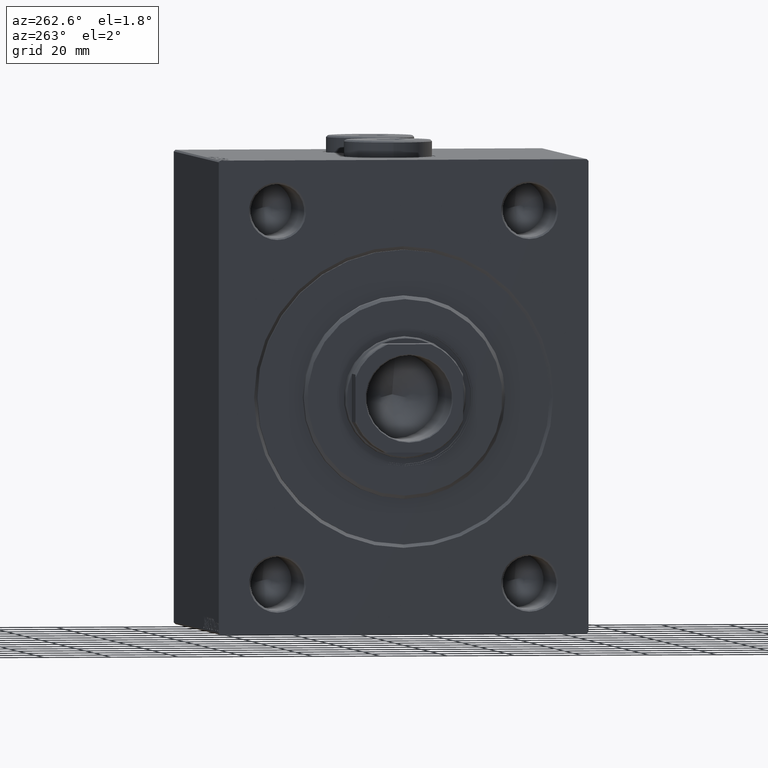
[diagram: clean part render]
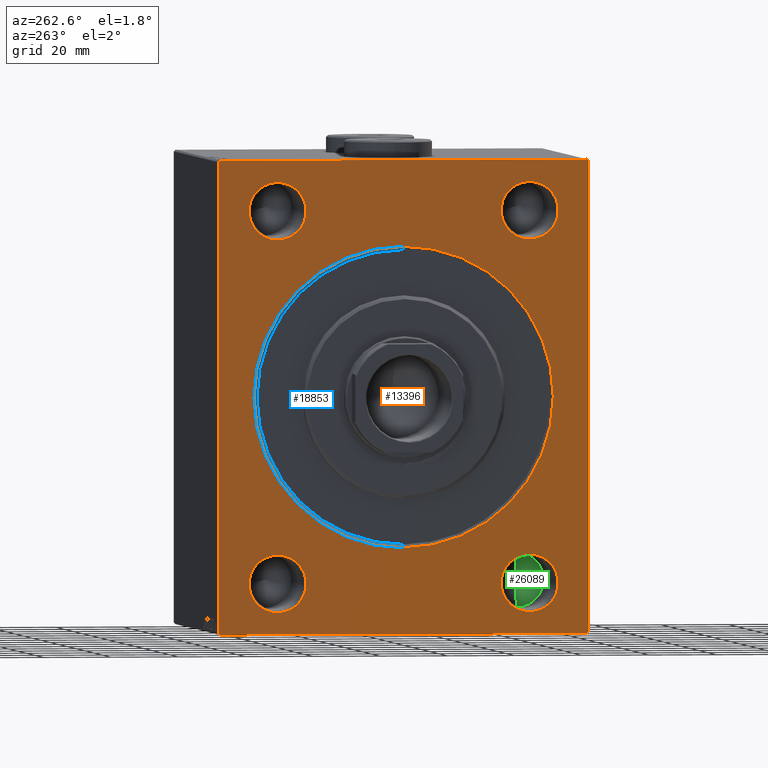
[diagram: same view with three faces highlighted in distinct colors, each labeled with its STEP entity id]
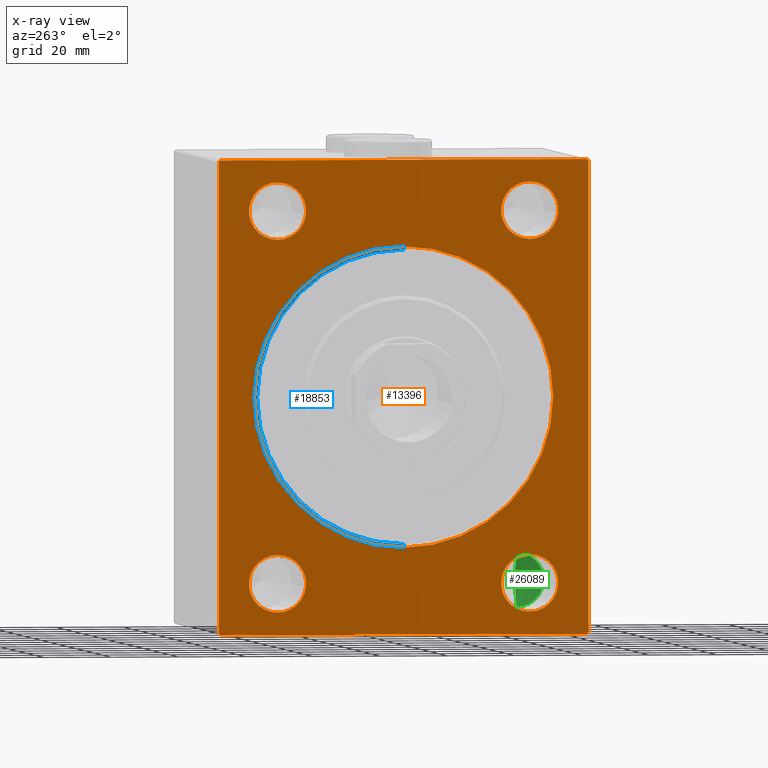
[diagram: x-ray of the same camera — body ghosted, the three highlighted faces saturated]
A machine part, auxiliary view with three faces highlighted in distinct colors.
The next image is the same camera in x-ray (body ghosted, the three faces saturated) — at least one of them is partly hidden behind the body in this view.
Their STEP definitions:

[orange] entity #13396 — the highlighted planar face has unit normal (1, 0, 0).
#227 = EDGE_CURVE ( 'NONE', #42600, #8505, #26789, .T. ) ;
#402 = VERTEX_POINT ( 'NONE', #42435 ) ;
#740 = CARTESIAN_POINT ( 'NONE',  ( 0.000000000000000000, 54.49999999999999289, 70.00000000000001421 ) ) ;
#1599 = VERTEX_POINT ( 'NONE', #23062 ) ;
#1832 = CARTESIAN_POINT ( 'NONE',  ( 0.000000000000000000, -37.49999999999999289, 63.50000000000001421 ) ) ;
#2028 = EDGE_CURVE ( 'NONE', #402, #24498, #37507, .T. ) ;
#2181 = DIRECTION ( 'NONE',  ( 1.000000000000000000, 0.000000000000000000, 0.000000000000000000 ) ) ;
#2273 = DIRECTION ( 'NONE',  ( 1.000000000000000000, 0.000000000000000000, 0.000000000000000000 ) ) ;
#2318 = ORIENTED_EDGE ( 'NONE', *, *, #18964, .T. ) ;
#2545 = AXIS2_PLACEMENT_3D ( 'NONE', #8100, #28364, #18009 ) ;
#2943 = CIRCLE ( 'NONE', #16145, 8.500000000000007105 ) ;
#4902 = CARTESIAN_POINT ( 'NONE',  ( 0.000000000000000000, 37.50000000000000000, 63.50000000000001421 ) ) ;
#4917 = EDGE_LOOP ( 'NONE', ( #36560, #19132 ) ) ;
#5129 = VERTEX_POINT ( 'NONE', #27247 ) ;
#5153 = DIRECTION ( 'NONE',  ( 1.000000000000000000, 0.000000000000000000, 0.000000000000000000 ) ) ;
#5258 = VERTEX_POINT ( 'NONE', #4902 ) ;
#5427 = AXIS2_PLACEMENT_3D ( 'NONE', #5951, #2273, #6183 ) ;
#5595 = EDGE_LOOP ( 'NONE', ( #33617, #24611, #40094, #15983, #19437, #31487, #16808, #16810 ) ) ;
#5678 = DIRECTION ( 'NONE',  ( 0.000000000000000000, 0.000000000000000000, -1.000000000000000000 ) ) ;
#5703 = EDGE_CURVE ( 'NONE', #42600, #24498, #24380, .T. ) ;
#5911 = EDGE_CURVE ( 'NONE', #24494, #42027, #31724, .T. ) ;
#5951 = CARTESIAN_POINT ( 'NONE',  ( 0.000000000000000000, -37.49999999999999289, 55.00000000000000711 ) ) ;
#5960 = VECTOR ( 'NONE', #30047, 999.9999999999998863 ) ;
#5962 = CARTESIAN_POINT ( 'NONE',  ( 0.000000000000000000, 54.99999999999999289, 70.00000000000001421 ) ) ;
#6183 = DIRECTION ( 'NONE',  ( 0.000000000000000000, 0.000000000000000000, -1.000000000000000000 ) ) ;
#6232 = EDGE_CURVE ( 'NONE', #5129, #20686, #44977, .T. ) ;
#6826 = ORIENTED_EDGE ( 'NONE', *, *, #41908, .T. ) ;
#7651 = CARTESIAN_POINT ( 'NONE',  ( 0.000000000000000000, 55.00000000000000711, -69.99999999999998579 ) ) ;
#7702 = LINE ( 'NONE', #7918, #38507 ) ;
#7814 = EDGE_LOOP ( 'NONE', ( #6826, #18977 ) ) ;
#7857 = DIRECTION ( 'NONE',  ( -0.000000000000000000, 0.7071067811865671127, -0.7071067811865279218 ) ) ;
#7918 = CARTESIAN_POINT ( 'NONE',  ( 0.000000000000000000, -55.00000000000000000, -70.00000000000000000 ) ) ;
#8069 = VECTOR ( 'NONE', #40711, 1000.000000000000000 ) ;
#8100 = CARTESIAN_POINT ( 'NONE',  ( 0.000000000000000000, 37.50000000000000000, -54.99999999999999289 ) ) ;
#8145 = FACE_BOUND ( 'NONE', #7814, .T. ) ;
#8505 = VERTEX_POINT ( 'NONE', #19377 ) ;
#8592 = ORIENTED_EDGE ( 'NONE', *, *, #27435, .T. ) ;
#8604 = PLANE ( 'NONE',  #24174 ) ;
#9107 = AXIS2_PLACEMENT_3D ( 'NONE', #34664, #13260, #41585 ) ;
#9431 = VECTOR ( 'NONE', #20008, 1000.000000000000000 ) ;
#9687 = DIRECTION ( 'NONE',  ( 1.000000000000000000, 0.000000000000000000, 0.000000000000000000 ) ) ;
#9719 = VERTEX_POINT ( 'NONE', #17062 ) ;
#10346 = CARTESIAN_POINT ( 'NONE',  ( 0.000000000000000000, 0.000000000000000000, 0.000000000000000000 ) ) ;
#11437 = EDGE_CURVE ( 'NONE', #42344, #9719, #19797, .T. ) ;
#12299 = DIRECTION ( 'NONE',  ( 0.000000000000000000, 0.000000000000000000, -1.000000000000000000 ) ) ;
#12511 = EDGE_CURVE ( 'NONE', #9719, #42344, #2943, .T. ) ;
#13211 = VECTOR ( 'NONE', #38658, 1000.000000000000000 ) ;
#13260 = DIRECTION ( 'NONE',  ( 1.000000000000000000, 0.000000000000000000, 0.000000000000000000 ) ) ;
#13396 = ADVANCED_FACE ( 'NONE', ( #33219, #39685, #40149, #8145, #36233, #22196 ), #8604, .F. ) ;
#14240 = CIRCLE ( 'NONE', #9107, 8.500000000000007105 ) ;
#14312 = AXIS2_PLACEMENT_3D ( 'NONE', #28873, #42930, #12299 ) ;
#14493 = ORIENTED_EDGE ( 'NONE', *, *, #11437, .T. ) ;
#14533 = CARTESIAN_POINT ( 'NONE',  ( 0.000000000000000000, -37.49999999999999289, -54.99999999999999289 ) ) ;
#15452 = DIRECTION ( 'NONE',  ( 1.000000000000000000, 0.000000000000000000, 0.000000000000000000 ) ) ;
#15503 = EDGE_CURVE ( 'NONE', #37531, #8505, #43321, .T. ) ;
#15983 = ORIENTED_EDGE ( 'NONE', *, *, #23582, .T. ) ;
#16145 = AXIS2_PLACEMENT_3D ( 'NONE', #14533, #15452, #43531 ) ;
#16397 = CIRCLE ( 'NONE', #2545, 8.500000000000007105 ) ;
#16808 = ORIENTED_EDGE ( 'NONE', *, *, #39352, .F. ) ;
#16810 = ORIENTED_EDGE ( 'NONE', *, *, #15503, .T. ) ;
#17062 = CARTESIAN_POINT ( 'NONE',  ( 0.000000000000000000, -37.49999999999999289, -63.50000000000000000 ) ) ;
#17077 = EDGE_LOOP ( 'NONE', ( #36264, #2318 ) ) ;
#17767 = AXIS2_PLACEMENT_3D ( 'NONE', #22961, #19506, #5678 ) ;
#18009 = DIRECTION ( 'NONE',  ( 0.000000000000000000, 0.000000000000000000, -1.000000000000000000 ) ) ;
#18484 = AXIS2_PLACEMENT_3D ( 'NONE', #19457, #44754, #19896 ) ;
#18964 = EDGE_CURVE ( 'NONE', #20686, #5129, #26522, .T. ) ;
#18977 = ORIENTED_EDGE ( 'NONE', *, *, #40954, .T. ) ;
#19132 = ORIENTED_EDGE ( 'NONE', *, *, #5911, .T. ) ;
#19251 = CARTESIAN_POINT ( 'NONE',  ( 0.000000000000000000, 55.00000000000000711, -69.49999999999998579 ) ) ;
#19377 = CARTESIAN_POINT ( 'NONE',  ( 0.000000000000000000, -55.00000000000000000, -69.50000000000000000 ) ) ;
#19437 = ORIENTED_EDGE ( 'NONE', *, *, #28458, .F. ) ;
#19457 = CARTESIAN_POINT ( 'NONE',  ( 0.000000000000000000, 0.000000000000000000, 0.000000000000000000 ) ) ;
#19458 = DIRECTION ( 'NONE',  ( 0.000000000000000000, 0.000000000000000000, -1.000000000000000000 ) ) ;
#19506 = DIRECTION ( 'NONE',  ( 1.000000000000000000, 0.000000000000000000, 0.000000000000000000 ) ) ;
#19582 = CARTESIAN_POINT ( 'NONE',  ( 0.000000000000000000, -37.49999999999999289, 46.50000000000000000 ) ) ;
#19694 = CARTESIAN_POINT ( 'NONE',  ( 0.000000000000000000, 54.99999999999999289, 69.50000000000004263 ) ) ;
#19797 = CIRCLE ( 'NONE', #31564, 8.500000000000007105 ) ;
#19896 = DIRECTION ( 'NONE',  ( 0.000000000000000000, 0.000000000000000000, -1.000000000000000000 ) ) ;
#20008 = DIRECTION ( 'NONE',  ( 0.000000000000000000, -1.000000000000000000, -1.261617073437677999E-16 ) ) ;
#20093 = EDGE_CURVE ( 'NONE', #36158, #28687, #44099, .T. ) ;
#20686 = VERTEX_POINT ( 'NONE', #37097 ) ;
#21085 = ORIENTED_EDGE ( 'NONE', *, *, #41732, .T. ) ;
#21378 = CARTESIAN_POINT ( 'NONE',  ( 0.000000000000000000, -55.00000000000000000, 69.50000000000002842 ) ) ;
#21965 = DIRECTION ( 'NONE',  ( 0.000000000000000000, 1.000000000000000000, 1.261617073437677752E-16 ) ) ;
#22196 = FACE_OUTER_BOUND ( 'NONE', #5595, .T. ) ;
#22656 = CARTESIAN_POINT ( 'NONE',  ( 0.000000000000000000, 0.000000000000000000, 0.000000000000000000 ) ) ;
#22894 = AXIS2_PLACEMENT_3D ( 'NONE', #10346, #37981, #41663 ) ;
#22961 = CARTESIAN_POINT ( 'NONE',  ( 0.000000000000000000, -37.49999999999999289, 55.00000000000000711 ) ) ;
#23062 = CARTESIAN_POINT ( 'NONE',  ( 0.000000000000000000, 37.50000000000000000, -46.49999999999998579 ) ) ;
#23087 = VERTEX_POINT ( 'NONE', #29195 ) ;
#23117 = CIRCLE ( 'NONE', #26780, 8.500000000000007105 ) ;
#23582 = EDGE_CURVE ( 'NONE', #402, #40002, #33164, .T. ) ;
#23730 = DIRECTION ( 'NONE',  ( 0.000000000000000000, 0.000000000000000000, -1.000000000000000000 ) ) ;
#23964 = CARTESIAN_POINT ( 'NONE',  ( 0.000000000000000000, 54.50000000000004263, -69.99999999999998579 ) ) ;
#24174 = AXIS2_PLACEMENT_3D ( 'NONE', #22656, #5153, #29768 ) ;
#24380 = LINE ( 'NONE', #21378, #13211 ) ;
#24494 = VERTEX_POINT ( 'NONE', #19582 ) ;
#24498 = VERTEX_POINT ( 'NONE', #33613 ) ;
#24611 = ORIENTED_EDGE ( 'NONE', *, *, #5703, .T. ) ;
#26522 = CIRCLE ( 'NONE', #22894, 44.50000000000001421 ) ;
#26780 = AXIS2_PLACEMENT_3D ( 'NONE', #41687, #9687, #23730 ) ;
#26789 = LINE ( 'NONE', #41297, #32926 ) ;
#27247 = CARTESIAN_POINT ( 'NONE',  ( 0.000000000000000000, 0.000000000000000000, 44.50000000000001421 ) ) ;
#27361 = ORIENTED_EDGE ( 'NONE', *, *, #12511, .T. ) ;
#27435 = EDGE_CURVE ( 'NONE', #23087, #1599, #14240, .T. ) ;
#28364 = DIRECTION ( 'NONE',  ( 1.000000000000000000, 0.000000000000000000, 0.000000000000000000 ) ) ;
#28458 = EDGE_CURVE ( 'NONE', #36158, #40002, #38517, .T. ) ;
#28687 = VERTEX_POINT ( 'NONE', #23964 ) ;
#28873 = CARTESIAN_POINT ( 'NONE',  ( 0.000000000000000000, 37.50000000000000000, 55.00000000000000711 ) ) ;
#29195 = CARTESIAN_POINT ( 'NONE',  ( 0.000000000000000000, 37.50000000000000000, -63.50000000000000000 ) ) ;
#29752 = EDGE_LOOP ( 'NONE', ( #21085, #8592 ) ) ;
#29768 = DIRECTION ( 'NONE',  ( 0.000000000000000000, 0.000000000000000000, -1.000000000000000000 ) ) ;
#30047 = DIRECTION ( 'NONE',  ( 0.000000000000000000, -0.7071067811865230368, -0.7071067811865721087 ) ) ;
#30112 = CARTESIAN_POINT ( 'NONE',  ( 0.000000000000000000, -54.49999999999997158, -70.00000000000000000 ) ) ;
#31328 = VERTEX_POINT ( 'NONE', #41032 ) ;
#31487 = ORIENTED_EDGE ( 'NONE', *, *, #20093, .T. ) ;
#31564 = AXIS2_PLACEMENT_3D ( 'NONE', #34165, #2181, #19458 ) ;
#31724 = CIRCLE ( 'NONE', #17767, 8.500000000000007105 ) ;
#32926 = VECTOR ( 'NONE', #38076, 1000.000000000000000 ) ;
#33164 = LINE ( 'NONE', #740, #34743 ) ;
#33219 = FACE_BOUND ( 'NONE', #17077, .T. ) ;
#33613 = CARTESIAN_POINT ( 'NONE',  ( 0.000000000000000000, -54.50000000000002132, 70.00000000000000000 ) ) ;
#33617 = ORIENTED_EDGE ( 'NONE', *, *, #227, .F. ) ;
#34165 = CARTESIAN_POINT ( 'NONE',  ( 0.000000000000000000, -37.49999999999999289, -54.99999999999999289 ) ) ;
#34664 = CARTESIAN_POINT ( 'NONE',  ( 0.000000000000000000, 37.50000000000000000, -54.99999999999999289 ) ) ;
#34743 = VECTOR ( 'NONE', #7857, 1000.000000000000000 ) ;
#35690 = CARTESIAN_POINT ( 'NONE',  ( 0.000000000000000000, 55.00000000000000711, -69.49999999999998579 ) ) ;
#36158 = VERTEX_POINT ( 'NONE', #35690 ) ;
#36233 = FACE_BOUND ( 'NONE', #29752, .T. ) ;
#36264 = ORIENTED_EDGE ( 'NONE', *, *, #6232, .T. ) ;
#36560 = ORIENTED_EDGE ( 'NONE', *, *, #44207, .T. ) ;
#36838 = EDGE_LOOP ( 'NONE', ( #14493, #27361 ) ) ;
#37097 = CARTESIAN_POINT ( 'NONE',  ( 0.000000000000000000, 5.449678256205723559E-15, -44.50000000000001421 ) ) ;
#37507 = LINE ( 'NONE', #5962, #9431 ) ;
#37531 = VERTEX_POINT ( 'NONE', #42099 ) ;
#37781 = CARTESIAN_POINT ( 'NONE',  ( 0.000000000000000000, -55.00000000000000000, 69.50000000000002842 ) ) ;
#37981 = DIRECTION ( 'NONE',  ( 1.000000000000000000, 0.000000000000000000, 0.000000000000000000 ) ) ;
#38076 = DIRECTION ( 'NONE',  ( 0.000000000000000000, 0.000000000000000000, -1.000000000000000000 ) ) ;
#38507 = VECTOR ( 'NONE', #21965, 1000.000000000000000 ) ;
#38517 = LINE ( 'NONE', #7651, #44400 ) ;
#38658 = DIRECTION ( 'NONE',  ( -0.000000000000000000, 0.7071067811865524577, 0.7071067811865426878 ) ) ;
#39352 = EDGE_CURVE ( 'NONE', #37531, #28687, #7702, .T. ) ;
#39685 = FACE_BOUND ( 'NONE', #36838, .T. ) ;
#40002 = VERTEX_POINT ( 'NONE', #19694 ) ;
#40094 = ORIENTED_EDGE ( 'NONE', *, *, #2028, .F. ) ;
#40149 = FACE_BOUND ( 'NONE', #4917, .T. ) ;
#40711 = DIRECTION ( 'NONE',  ( -0.000000000000000000, -0.7071067811865672237, 0.7071067811865279218 ) ) ;
#40954 = EDGE_CURVE ( 'NONE', #31328, #5258, #42962, .T. ) ;
#41032 = CARTESIAN_POINT ( 'NONE',  ( 0.000000000000000000, 37.50000000000000000, 46.50000000000000000 ) ) ;
#41297 = CARTESIAN_POINT ( 'NONE',  ( 0.000000000000000000, -55.00000000000000000, 70.00000000000000000 ) ) ;
#41585 = DIRECTION ( 'NONE',  ( 0.000000000000000000, 0.000000000000000000, -1.000000000000000000 ) ) ;
#41663 = DIRECTION ( 'NONE',  ( 0.000000000000000000, 0.000000000000000000, -1.000000000000000000 ) ) ;
#41687 = CARTESIAN_POINT ( 'NONE',  ( 0.000000000000000000, 37.50000000000000000, 55.00000000000000711 ) ) ;
#41732 = EDGE_CURVE ( 'NONE', #1599, #23087, #16397, .T. ) ;
#41734 = DIRECTION ( 'NONE',  ( 0.000000000000000000, -9.912705577010325549E-17, 1.000000000000000000 ) ) ;
#41908 = EDGE_CURVE ( 'NONE', #5258, #31328, #23117, .T. ) ;
#42027 = VERTEX_POINT ( 'NONE', #1832 ) ;
#42099 = CARTESIAN_POINT ( 'NONE',  ( 0.000000000000000000, -54.49999999999997158, -70.00000000000000000 ) ) ;
#42344 = VERTEX_POINT ( 'NONE', #45249 ) ;
#42435 = CARTESIAN_POINT ( 'NONE',  ( 0.000000000000000000, 54.49999999999999289, 70.00000000000001421 ) ) ;
#42600 = VERTEX_POINT ( 'NONE', #37781 ) ;
#42930 = DIRECTION ( 'NONE',  ( 1.000000000000000000, 0.000000000000000000, 0.000000000000000000 ) ) ;
#42962 = CIRCLE ( 'NONE', #14312, 8.500000000000007105 ) ;
#43321 = LINE ( 'NONE', #30112, #8069 ) ;
#43531 = DIRECTION ( 'NONE',  ( 0.000000000000000000, 0.000000000000000000, -1.000000000000000000 ) ) ;
#44099 = LINE ( 'NONE', #19251, #5960 ) ;
#44207 = EDGE_CURVE ( 'NONE', #42027, #24494, #44393, .T. ) ;
#44393 = CIRCLE ( 'NONE', #5427, 8.500000000000007105 ) ;
#44400 = VECTOR ( 'NONE', #41734, 1000.000000000000000 ) ;
#44754 = DIRECTION ( 'NONE',  ( 1.000000000000000000, 0.000000000000000000, 0.000000000000000000 ) ) ;
#44977 = CIRCLE ( 'NONE', #18484, 44.50000000000001421 ) ;
#45249 = CARTESIAN_POINT ( 'NONE',  ( 0.000000000000000000, -37.49999999999999289, -46.49999999999998579 ) ) ;

[blue] entity #18853 — the highlighted conical surface has half-angle 45 deg.
#2299 = DIRECTION ( 'NONE',  ( 0.000000000000000000, 0.000000000000000000, 1.000000000000000000 ) ) ;
#2320 = ORIENTED_EDGE ( 'NONE', *, *, #16295, .T. ) ;
#3140 = ORIENTED_EDGE ( 'NONE', *, *, #7529, .F. ) ;
#4046 = DIRECTION ( 'NONE',  ( 0.000000000000000000, 0.000000000000000000, -1.000000000000000000 ) ) ;
#5129 = VERTEX_POINT ( 'NONE', #27247 ) ;
#6533 = LINE ( 'NONE', #41060, #16143 ) ;
#6973 = ORIENTED_EDGE ( 'NONE', *, *, #18964, .F. ) ;
#7529 = EDGE_CURVE ( 'NONE', #10734, #20686, #31513, .T. ) ;
#9021 = EDGE_LOOP ( 'NONE', ( #3140, #9949, #2320, #6973 ) ) ;
#9427 = DIRECTION ( 'NONE',  ( -1.000000000000000000, 0.000000000000000000, 0.000000000000000000 ) ) ;
#9554 = EDGE_CURVE ( 'NONE', #29121, #10734, #40374, .T. ) ;
#9949 = ORIENTED_EDGE ( 'NONE', *, *, #9554, .F. ) ;
#10346 = CARTESIAN_POINT ( 'NONE',  ( 0.000000000000000000, 0.000000000000000000, 0.000000000000000000 ) ) ;
#10734 = VERTEX_POINT ( 'NONE', #16385 ) ;
#13202 = DIRECTION ( 'NONE',  ( -0.7071067811865426878, 0.000000000000000000, 0.7071067811865524577 ) ) ;
#15361 = AXIS2_PLACEMENT_3D ( 'NONE', #21995, #35587, #4046 ) ;
#16106 = CARTESIAN_POINT ( 'NONE',  ( 1.000000000000000888, 0.000000000000000000, 0.000000000000000000 ) ) ;
#16143 = VECTOR ( 'NONE', #13202, 1000.000000000000000 ) ;
#16295 = EDGE_CURVE ( 'NONE', #29121, #5129, #6533, .T. ) ;
#16385 = CARTESIAN_POINT ( 'NONE',  ( 1.000000000000000888, 5.327213576290986044E-15, -43.50000000000000000 ) ) ;
#18853 = ADVANCED_FACE ( 'NONE', ( #19342 ), #36066, .F. ) ;
#18964 = EDGE_CURVE ( 'NONE', #20686, #5129, #26522, .T. ) ;
#19342 = FACE_OUTER_BOUND ( 'NONE', #9021, .T. ) ;
#20686 = VERTEX_POINT ( 'NONE', #37097 ) ;
#21995 = CARTESIAN_POINT ( 'NONE',  ( 1.000000000000000888, 0.000000000000000000, 0.000000000000000000 ) ) ;
#22134 = AXIS2_PLACEMENT_3D ( 'NONE', #16106, #9427, #2299 ) ;
#22894 = AXIS2_PLACEMENT_3D ( 'NONE', #10346, #37981, #41663 ) ;
#26522 = CIRCLE ( 'NONE', #22894, 44.50000000000001421 ) ;
#27247 = CARTESIAN_POINT ( 'NONE',  ( 0.000000000000000000, 0.000000000000000000, 44.50000000000001421 ) ) ;
#29121 = VERTEX_POINT ( 'NONE', #42977 ) ;
#31513 = LINE ( 'NONE', #45342, #32182 ) ;
#32182 = VECTOR ( 'NONE', #34295, 1000.000000000000000 ) ;
#34295 = DIRECTION ( 'NONE',  ( -0.7071067811865426878, 8.659560562354994488E-17, -0.7071067811865524577 ) ) ;
#35587 = DIRECTION ( 'NONE',  ( -1.000000000000000000, 0.000000000000000000, 0.000000000000000000 ) ) ;
#36066 = CONICAL_SURFACE ( 'NONE', #22134, 43.50000000000000000, 0.7853981633974552734 ) ;
#37097 = CARTESIAN_POINT ( 'NONE',  ( 0.000000000000000000, 5.449678256205723559E-15, -44.50000000000001421 ) ) ;
#37981 = DIRECTION ( 'NONE',  ( 1.000000000000000000, 0.000000000000000000, 0.000000000000000000 ) ) ;
#40374 = CIRCLE ( 'NONE', #15361, 43.50000000000000000 ) ;
#41060 = CARTESIAN_POINT ( 'NONE',  ( 1.000000000000000888, 0.000000000000000000, 43.50000000000000000 ) ) ;
#41663 = DIRECTION ( 'NONE',  ( 0.000000000000000000, 0.000000000000000000, -1.000000000000000000 ) ) ;
#42977 = CARTESIAN_POINT ( 'NONE',  ( 1.000000000000000888, 0.000000000000000000, 43.50000000000000000 ) ) ;
#45342 = CARTESIAN_POINT ( 'NONE',  ( 1.000000000000000888, 5.327213576290986044E-15, -43.50000000000000000 ) ) ;

[green] entity #26089 — the highlighted conical surface has half-angle 59 deg.
#62 = DIRECTION ( 'NONE',  ( -1.000000000000000000, -0.000000000000000000, -0.000000000000000000 ) ) ;
#379 = DIRECTION ( 'NONE',  ( -0.5150380749100550437, 1.049727191138617956E-16, -0.8571673007021117785 ) ) ;
#824 = CARTESIAN_POINT ( 'NONE',  ( 30.00000000000000000, -37.49999999999999289, -62.99999999999998579 ) ) ;
#1500 = CARTESIAN_POINT ( 'NONE',  ( 34.80688495222048573, -37.50000000000000000, -54.99999999999999289 ) ) ;
#4210 = VERTEX_POINT ( 'NONE', #1500 ) ;
#4619 = VECTOR ( 'NONE', #379, 1000.000000000000000 ) ;
#7344 = DIRECTION ( 'NONE',  ( -0.5150380749100550437, 0.000000000000000000, 0.8571673007021117785 ) ) ;
#9799 = AXIS2_PLACEMENT_3D ( 'NONE', #28027, #25478, #10541 ) ;
#10541 = DIRECTION ( 'NONE',  ( 0.000000000000000000, 0.000000000000000000, 1.000000000000000000 ) ) ;
#11952 = ORIENTED_EDGE ( 'NONE', *, *, #24735, .T. ) ;
#13601 = VERTEX_POINT ( 'NONE', #22136 ) ;
#14075 = DIRECTION ( 'NONE',  ( 0.000000000000000000, 0.000000000000000000, 1.000000000000000000 ) ) ;
#14731 = VERTEX_POINT ( 'NONE', #25759 ) ;
#18033 = EDGE_CURVE ( 'NONE', #4210, #14731, #39545, .T. ) ;
#19889 = VECTOR ( 'NONE', #7344, 1000.000000000000000 ) ;
#22136 = CARTESIAN_POINT ( 'NONE',  ( 30.00000000000000000, -37.49999999999999289, -62.99999999999998579 ) ) ;
#24138 = EDGE_LOOP ( 'NONE', ( #29350, #11952, #25285 ) ) ;
#24735 = EDGE_CURVE ( 'NONE', #4210, #13601, #35804, .T. ) ;
#25285 = ORIENTED_EDGE ( 'NONE', *, *, #42163, .T. ) ;
#25478 = DIRECTION ( 'NONE',  ( -1.000000000000000000, -0.000000000000000000, -0.000000000000000000 ) ) ;
#25759 = CARTESIAN_POINT ( 'NONE',  ( 30.00000000000000000, -37.49999999999999289, -47.00000000000000000 ) ) ;
#26089 = ADVANCED_FACE ( 'NONE', ( #35024 ), #27447, .F. ) ;
#27447 = CONICAL_SURFACE ( 'NONE', #39216, 7.999999999999992895, 1.029744258676653423 ) ;
#28027 = CARTESIAN_POINT ( 'NONE',  ( 30.00000000000000000, -37.49999999999999289, -54.99999999999999289 ) ) ;
#29350 = ORIENTED_EDGE ( 'NONE', *, *, #18033, .F. ) ;
#31566 = CARTESIAN_POINT ( 'NONE',  ( 30.00000000000000000, -37.49999999999999289, -54.99999999999999289 ) ) ;
#32596 = CIRCLE ( 'NONE', #9799, 7.999999999999992895 ) ;
#35024 = FACE_OUTER_BOUND ( 'NONE', #24138, .T. ) ;
#35804 = LINE ( 'NONE', #824, #4619 ) ;
#36099 = CARTESIAN_POINT ( 'NONE',  ( 30.00000000000000000, -37.49999999999999289, -47.00000000000000000 ) ) ;
#39216 = AXIS2_PLACEMENT_3D ( 'NONE', #31566, #62, #14075 ) ;
#39545 = LINE ( 'NONE', #36099, #19889 ) ;
#42163 = EDGE_CURVE ( 'NONE', #13601, #14731, #32596, .T. ) ;